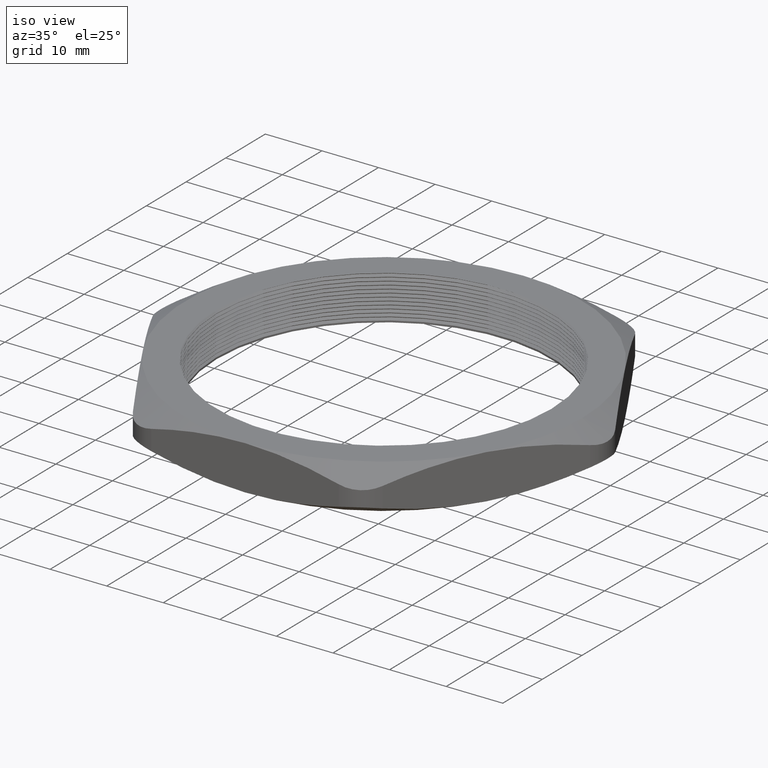
[diagram: clean part render]
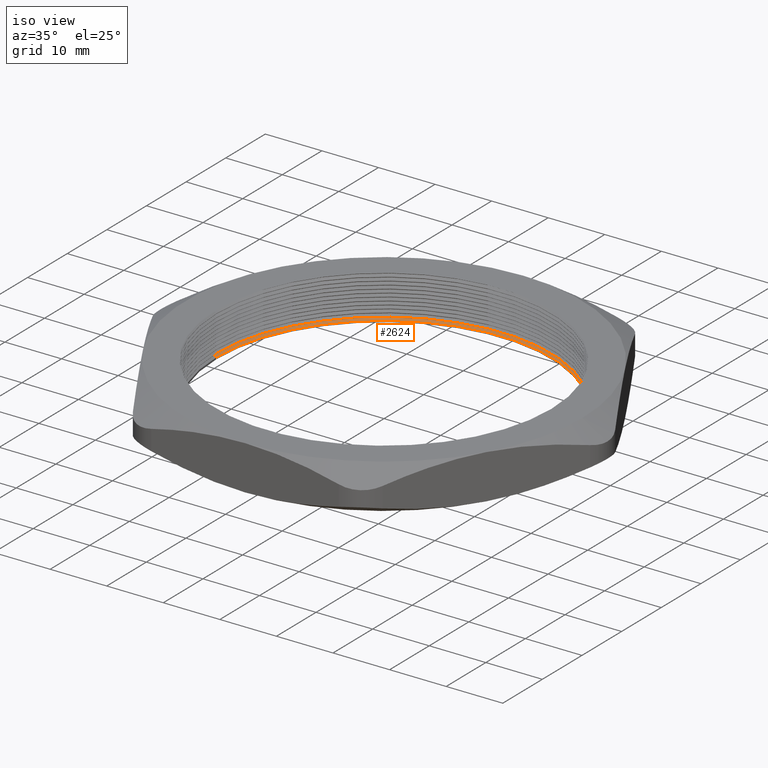
[diagram: same view with one face highlighted and labeled with its STEP entity id]
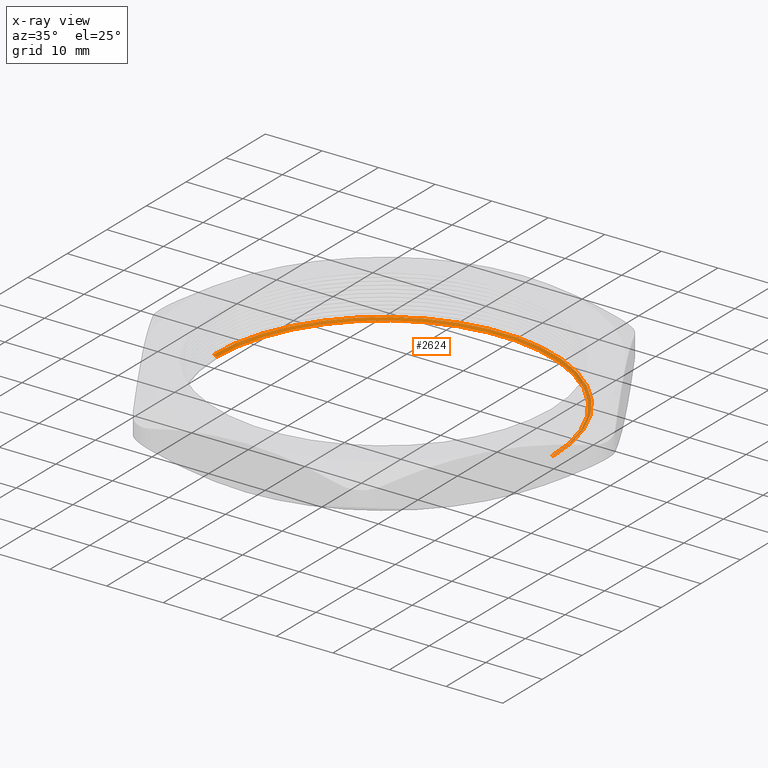
[diagram: x-ray of the same camera — body ghosted, the highlighted face saturated]
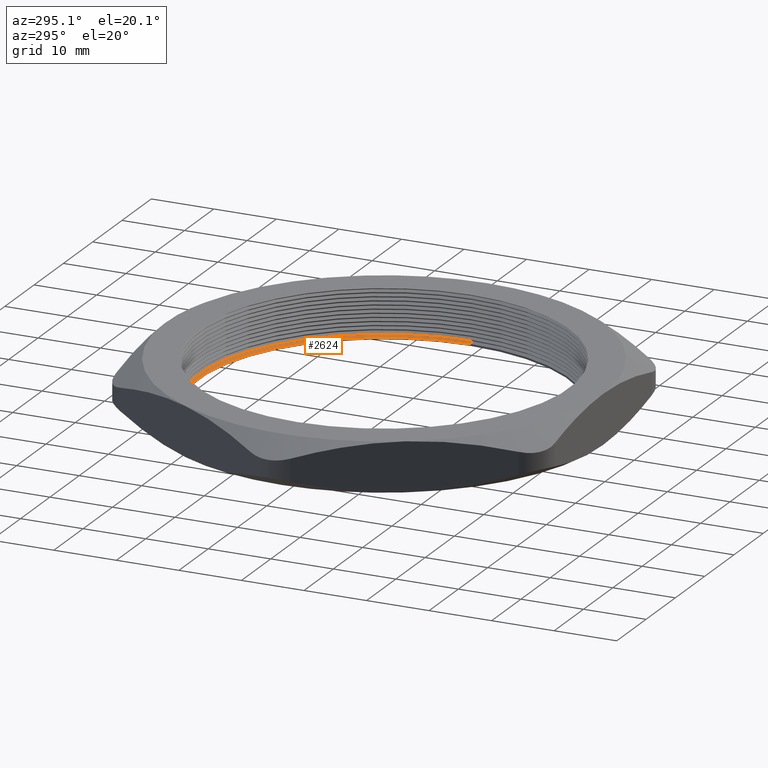
[diagram: same view with one face highlighted and labeled with its STEP entity id]
A machine part, iso view. The second image highlights one B-rep face of the part: STEP entity #2624.
The next image is the same camera in x-ray: the body ghosted, the highlighted face saturated — about 14% of this face is hidden behind the body in this view.
A second angle (auxiliary view) of the same face is appended — the face is thin or edge-on in the first view.
In plain terms, the highlighted conical surface has half-angle 60 deg.
Its self-contained STEP definition (entity closure, byte-faithful):
#1163 = DIRECTION ( 'NONE',  ( 1.000000000000000000, 0.0000000000000000000, 0.0000000000000000000 ) ) ;
#1164 = DIRECTION ( 'NONE',  ( 0.0000000000000000000, 0.0000000000000000000, 1.000000000000000000 ) ) ;
#1165 = CARTESIAN_POINT ( 'NONE',  ( 0.0000000000000000000, 0.0000000000000000000, 0.01190598923241489700 ) ) ;
#1166 = AXIS2_PLACEMENT_3D ( 'NONE', #1165, #1164, #1163 ) ;
#1167 = CIRCLE ( 'NONE', #1166, 1.165000000000000000 ) ;
#1338 = DIRECTION ( 'NONE',  ( 1.000000000000000000, 0.0000000000000000000, 0.0000000000000000000 ) ) ;
#1339 = DIRECTION ( 'NONE',  ( 0.0000000000000000000, 0.0000000000000000000, 1.000000000000000000 ) ) ;
#1340 = CARTESIAN_POINT ( 'NONE',  ( 0.0000000000000000000, 0.0000000000000000000, 0.01190598923241489700 ) ) ;
#1341 = AXIS2_PLACEMENT_3D ( 'NONE', #1340, #1339, #1338 ) ;
#1342 = CONICAL_SURFACE ( 'NONE', #1341, 1.165000000000000000, 1.047197551196591200 ) ;
#1343 = FACE_OUTER_BOUND ( 'NONE', #2633, .T. ) ;
#1344 = DIRECTION ( 'NONE',  ( 1.000000000000000000, 0.0000000000000000000, 0.0000000000000000000 ) ) ;
#1345 = DIRECTION ( 'NONE',  ( 0.0000000000000000000, 0.0000000000000000000, 1.000000000000000000 ) ) ;
#1346 = CARTESIAN_POINT ( 'NONE',  ( 0.0000000000000000000, 0.0000000000000000000, 0.02345299461620762100 ) ) ;
#1347 = AXIS2_PLACEMENT_3D ( 'NONE', #1346, #1345, #1344 ) ;
#1348 = CIRCLE ( 'NONE', #1347, 1.185000000000000100 ) ;
#1477 = CARTESIAN_POINT ( 'NONE',  ( 1.185000000000000100, 1.451206456989613700E-016, 0.02345299461620762100 ) ) ;
#1503 = DIRECTION ( 'NONE',  ( 0.8660254037844353800, 0.0000000000000000000, 0.5000000000000056600 ) ) ;
#1504 = VECTOR ( 'NONE', #1503, 39.37007874015748100 ) ;
#1505 = CARTESIAN_POINT ( 'NONE',  ( 1.165000000000000000, 0.0000000000000000000, 0.01190598923241489700 ) ) ;
#1506 = LINE ( 'NONE', #1505, #1504 ) ;
#1513 = CARTESIAN_POINT ( 'NONE',  ( -1.185000000000000100, 0.0000000000000000000, 0.02345299461620762100 ) ) ;
#1514 = DIRECTION ( 'NONE',  ( -0.8660254037844353800, 1.060575238724902800E-016, 0.5000000000000056600 ) ) ;
#1515 = VECTOR ( 'NONE', #1514, 39.37007874015748100 ) ;
#1516 = CARTESIAN_POINT ( 'NONE',  ( -1.165000000000000000, 1.426713521006666400E-016, 0.01190598923241489700 ) ) ;
#1517 = LINE ( 'NONE', #1516, #1515 ) ;
#1518 = CARTESIAN_POINT ( 'NONE',  ( 1.165000000000000000, 1.426713521006666400E-016, 0.01190598923241489700 ) ) ;
#1569 = CARTESIAN_POINT ( 'NONE',  ( -1.165000000000000000, 0.0000000000000000000, 0.01190598923241489700 ) ) ;
#2517 = EDGE_CURVE ( 'NONE', #2717, #2760, #1167, .T. ) ;
#2623 = EDGE_CURVE ( 'NONE', #2705, #2720, #1348, .T. ) ;
#2624 = ADVANCED_FACE ( 'NONE', ( #1343 ), #1342, .F. ) ;
#2625 = ORIENTED_EDGE ( 'NONE', *, *, #2719, .F. ) ;
#2626 = ORIENTED_EDGE ( 'NONE', *, *, #2517, .F. ) ;
#2627 = ORIENTED_EDGE ( 'NONE', *, *, #2725, .T. ) ;
#2628 = ORIENTED_EDGE ( 'NONE', *, *, #2623, .T. ) ;
#2633 = EDGE_LOOP ( 'NONE', ( #2625, #2626, #2627, #2628 ) ) ;
#2705 = VERTEX_POINT ( 'NONE', #1477 ) ;
#2717 = VERTEX_POINT ( 'NONE', #1518 ) ;
#2719 = EDGE_CURVE ( 'NONE', #2760, #2720, #1517, .T. ) ;
#2720 = VERTEX_POINT ( 'NONE', #1513 ) ;
#2725 = EDGE_CURVE ( 'NONE', #2717, #2705, #1506, .T. ) ;
#2760 = VERTEX_POINT ( 'NONE', #1569 ) ;